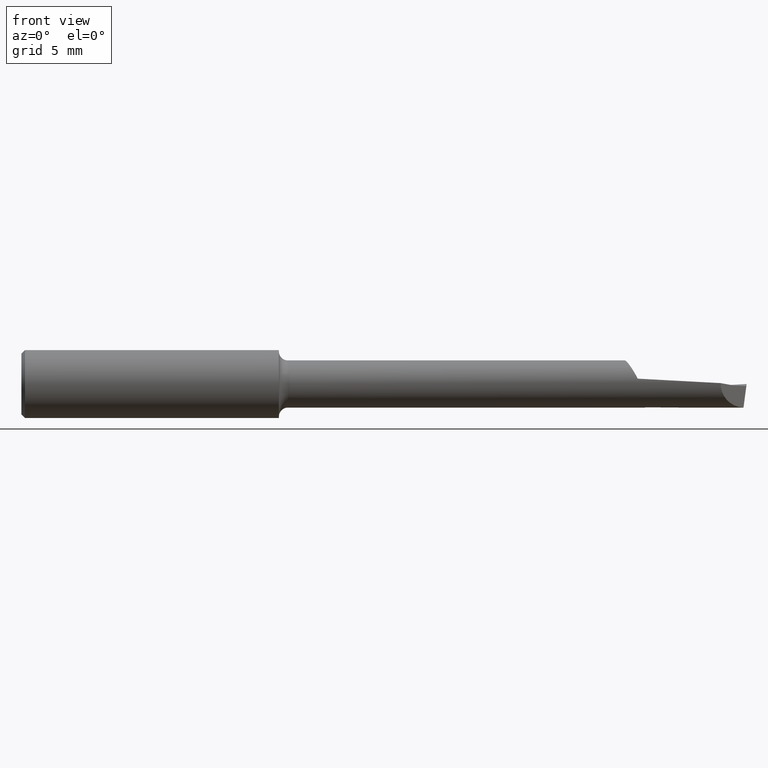
[diagram: clean part render]
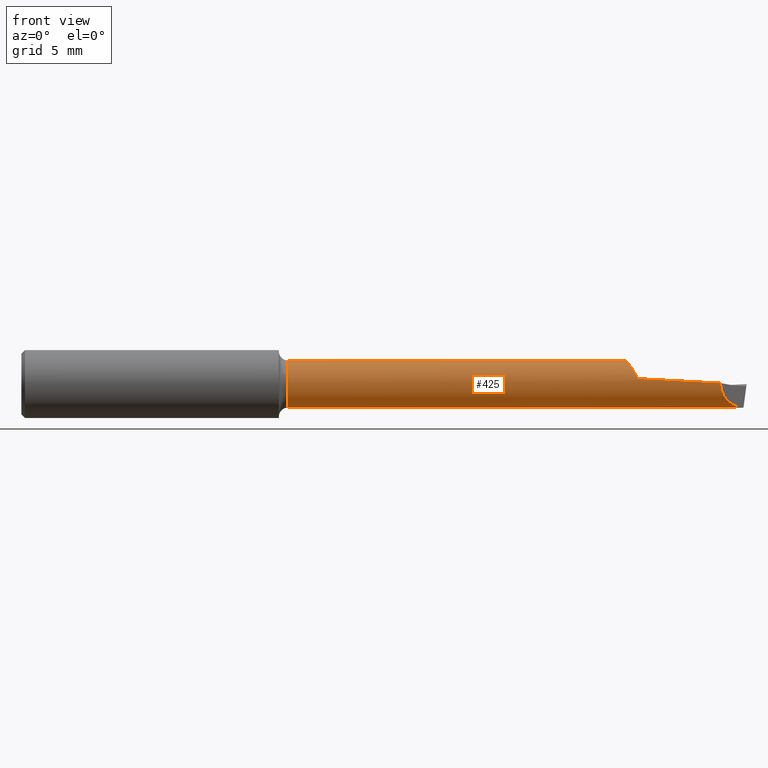
[diagram: same view with one face highlighted and labeled with its STEP entity id]
A machine part, front view. The second image highlights one B-rep face of the part: STEP entity #425.
In plain terms, the highlighted cylindrical surface (edge-blend (fillet) strip) has radius 1.651 mm, axis along (-1, -0, -0).
Its self-contained STEP definition (entity closure, byte-faithful):
#8 = CARTESIAN_POINT ( 'NONE',  ( 1.667261456732745506, -0.01378368978422076473, 0.06362134062580601657 ) ) ;
#18 = AXIS2_PLACEMENT_3D ( 'NONE', #138, #553, #372 ) ;
#24 = CARTESIAN_POINT ( 'NONE',  ( 1.751194580466905792, -0.006177430924799603464, -0.06477662660053580546 ) ) ;
#30 = CARTESIAN_POINT ( 'NONE',  ( 1.813570384251951273, 8.003460918938271148E-19, -0.06500000000000000222 ) ) ;
#38 = CARTESIAN_POINT ( 'NONE',  ( 1.699977625303844553, -0.06329835092067141733, 0.01477561405571807193 ) ) ;
#52 = CARTESIAN_POINT ( 'NONE',  ( 1.677202741120177754, -0.03862555393859516684, 0.05228136643228501607 ) ) ;
#57 = ORIENTED_EDGE ( 'NONE', *, *, #495, .T. ) ;
#69 = CARTESIAN_POINT ( 'NONE',  ( 0.000000000000000000, 0.000000000000000000, 0.06499999999999998834 ) ) ;
#93 = CARTESIAN_POINT ( 'NONE',  ( 1.953242078417094296, -0.04044165432096010621, -0.06358710017899862899 ) ) ;
#118 = CARTESIAN_POINT ( 'NONE',  ( 1.677652338294585821, -0.03944591485999998648, 0.05166569923872247477 ) ) ;
#129 = ORIENTED_EDGE ( 'NONE', *, *, #556, .F. ) ;
#136 = VERTEX_POINT ( 'NONE', #472 ) ;
#138 = CARTESIAN_POINT ( 'NONE',  ( 1.719999999999999973, 0.000000000000000000, 0.000000000000000000 ) ) ;
#143 = VECTOR ( 'NONE', #161, 39.37007874015748143 ) ;
#147 = CARTESIAN_POINT ( 'NONE',  ( 1.664282264028300151, 9.629122535582421507E-07, 0.06500714507469043668 ) ) ;
#148 = CARTESIAN_POINT ( 'NONE',  ( 1.991350124252631471, -0.001558269957249901238, -0.06498599036864870226 ) ) ;
#152 = CARTESIAN_POINT ( 'NONE',  ( 1.991346768599194572, -0.002336964138860349403, -0.06495797563512641093 ) ) ;
#160 = VERTEX_POINT ( 'NONE', #467 ) ;
#161 = DIRECTION ( 'NONE',  ( -1.000000000000000000, -0.000000000000000000, -0.000000000000000000 ) ) ;
#164 = CARTESIAN_POINT ( 'NONE',  ( 0.000000000000000000, 7.960204194457793628E-18, -0.06499999999999998834 ) ) ;
#168 = CARTESIAN_POINT ( 'NONE',  ( 1.670784438365078506, -0.02456679488876298625, 0.06029855173159224396 ) ) ;
#169 = CIRCLE ( 'NONE', #608, 0.06499999999999998834 ) ;
#180 = CARTESIAN_POINT ( 'NONE',  ( 1.665945290486797070, -0.008512530675338348535, 0.06446474302496317532 ) ) ;
#186 = CARTESIAN_POINT ( 'NONE',  ( 1.676749584679821936, -0.03777747030632286340, 0.05289742366453282357 ) ) ;
#191 = CARTESIAN_POINT ( 'NONE',  ( 1.664419148966658435, -0.0008299192885627541295, 0.06499604847790314832 ) ) ;
#197 = ORIENTED_EDGE ( 'NONE', *, *, #484, .F. ) ;
#201 = B_SPLINE_CURVE_WITH_KNOTS ( 'NONE', 3,
 ( #657, #24, #363, #30 ),
 .UNSPECIFIED., .F., .F.,
 ( 4, 4 ),
 ( 0.000000000000000000, 0.002388144790512181353 ),
 .UNSPECIFIED. ) ;
#203 = VERTEX_POINT ( 'NONE', #361 ) ;
#206 = EDGE_CURVE ( 'NONE', #160, #263, #655, .T. ) ;
#211 = DIRECTION ( 'NONE',  ( 0.000000000000000000, 0.000000000000000000, 1.000000000000000000 ) ) ;
#222 = DIRECTION ( 'NONE',  ( -1.000000000000000000, -0.000000000000000000, -0.000000000000000000 ) ) ;
#228 = CARTESIAN_POINT ( 'NONE',  ( 1.694922189286493852, -0.06109974571064823862, 0.02419769389576081203 ) ) ;
#232 = VECTOR ( 'NONE', #385, 39.37007874015748143 ) ;
#235 = CARTESIAN_POINT ( 'NONE',  ( 1.699999999999999956, 0.000000000000000000, -0.06500000000000000222 ) ) ;
#240 = CARTESIAN_POINT ( 'NONE',  ( 1.675630609971750618, -0.03564624879618151498, 0.05440640226064081403 ) ) ;
#243 = CARTESIAN_POINT ( 'NONE',  ( 1.677277705332639535, -0.03876205112631275068, 0.05217839171269312432 ) ) ;
#263 = VERTEX_POINT ( 'NONE', #476 ) ;
#265 = B_SPLINE_CURVE_WITH_KNOTS ( 'NONE', 3,
 ( #359, #228, #647, #474, #753, #541, #118, #243, #52, #186, #240, #595, #706, #168, #465, #8, #180, #422, #521, #694, #402, #191, #728, #147 ),
 .UNSPECIFIED., .F., .F.,
 ( 4, 2, 2, 2, 2, 1, 2, 2, 2, 2, 1, 2, 4 ),
 ( 0.000000000000000000, 0.2298010575319051063, 0.4596021150638102126, 0.4883272472552957488, 0.5026898133510385724, 0.5170523794467812850, 0.5745026438297522464, 0.6894031725956940582, 0.8043037013616360920, 0.8617539657446070533, 0.8904790979360924785, 0.9048416640318344140, 0.9192042301275763494 ),
 .UNSPECIFIED. ) ;
#276 = CARTESIAN_POINT ( 'NONE',  ( 1.991346768599194572, -0.002336964138860349403, -0.06495797563512641093 ) ) ;
#307 = EDGE_LOOP ( 'NONE', ( #197, #390, #641, #523, #129, #439, #57, #445, #727, #335 ) ) ;
#326 = CARTESIAN_POINT ( 'NONE',  ( 0.7350000000000000977, 7.960204194457793628E-18, -0.06499999999999998834 ) ) ;
#328 = CARTESIAN_POINT ( 'NONE',  ( 1.991346768599194572, -0.002336964138860349403, -0.06495797563512641093 ) ) ;
#334 = LINE ( 'NONE', #164, #143 ) ;
#335 = ORIENTED_EDGE ( 'NONE', *, *, #433, .F. ) ;
#359 = CARTESIAN_POINT ( 'NONE',  ( 1.699977625303844553, -0.06329835092067141733, 0.01477561405571807193 ) ) ;
#361 = CARTESIAN_POINT ( 'NONE',  ( 1.928729976218956255, -0.06495375651909796044, 0.002451431022431828106 ) ) ;
#363 = CARTESIAN_POINT ( 'NONE',  ( 1.782384157267214331, -0.003113718387558165809, -0.06500000000000005773 ) ) ;
#367 = LINE ( 'NONE', #69, #232 ) ;
#372 = DIRECTION ( 'NONE',  ( 0.000000000000000000, 0.000000000000000000, -1.000000000000000000 ) ) ;
#380 = EDGE_CURVE ( 'NONE', #670, #583, #552, .T. ) ;
#382 = CARTESIAN_POINT ( 'NONE',  ( 1.991355202879055541, -0.0007791979554441065634, -0.06500000000000000222 ) ) ;
#385 = DIRECTION ( 'NONE',  ( -1.000000000000000000, -0.000000000000000000, -0.000000000000000000 ) ) ;
#390 = ORIENTED_EDGE ( 'NONE', *, *, #380, .T. ) ;
#402 = CARTESIAN_POINT ( 'NONE',  ( 1.664560578207861186, -0.001666625202061085883, 0.06497997725610032971 ) ) ;
#416 =( BOUNDED_CURVE ( )  B_SPLINE_CURVE ( 3, ( #276, #148, #382, #617 ),
 .UNSPECIFIED., .F., .F. ) 
 B_SPLINE_CURVE_WITH_KNOTS ( ( 4, 4 ),
 ( 0.03499157823729449196, 0.07095262296443949346 ),
 .UNSPECIFIED. ) 
 CURVE ( )  GEOMETRIC_REPRESENTATION_ITEM ( )  RATIONAL_B_SPLINE_CURVE ( ( 1.000000000000000000, 0.9998922365085453068, 0.9998922365085453068, 1.000000000000000000 ) ) 
 REPRESENTATION_ITEM ( '' )  );
#422 = CARTESIAN_POINT ( 'NONE',  ( 1.665551100861837330, -0.006773844914008124614, 0.06466892630471646197 ) ) ;
#425 = ADVANCED_FACE ( 'NONE', ( #744 ), #448, .T. ) ;
#433 = EDGE_CURVE ( 'NONE', #570, #574, #169, .T. ) ;
#435 = VERTEX_POINT ( 'NONE', #460 ) ;
#439 = ORIENTED_EDGE ( 'NONE', *, *, #757, .F. ) ;
#445 = ORIENTED_EDGE ( 'NONE', *, *, #656, .T. ) ;
#448 = CYLINDRICAL_SURFACE ( 'NONE', #503, 0.06499999999999998834 ) ;
#460 = CARTESIAN_POINT ( 'NONE',  ( 1.699977625303844553, -0.06329835092067141733, 0.01477561405571807193 ) ) ;
#465 = CARTESIAN_POINT ( 'NONE',  ( 1.668317030724798311, -0.01737246559410435265, 0.06275061905045808963 ) ) ;
#467 = CARTESIAN_POINT ( 'NONE',  ( 1.813570384251951273, 8.003460918938271148E-19, -0.06500000000000000222 ) ) ;
#472 = CARTESIAN_POINT ( 'NONE',  ( 1.664282264028300151, 9.629122535582421507E-07, 0.06500714507469043668 ) ) ;
#474 = CARTESIAN_POINT ( 'NONE',  ( 1.683276055985310160, -0.04866035578935893474, 0.04370380384906218801 ) ) ;
#476 = CARTESIAN_POINT ( 'NONE',  ( 1.991362002836595479, 0.000000000000000000, -0.06500000000000000222 ) ) ;
#484 = EDGE_CURVE ( 'NONE', #670, #570, #334, .T. ) ;
#494 =( BOUNDED_CURVE ( )  B_SPLINE_CURVE ( 3, ( #715, #545, #93, #328 ),
 .UNSPECIFIED., .F., .T. ) 
 B_SPLINE_CURVE_WITH_KNOTS ( ( 4, 4 ),
 ( 6.245462037408546330, 7.818020589247341334 ),
 .UNSPECIFIED. ) 
 CURVE ( )  GEOMETRIC_REPRESENTATION_ITEM ( )  RATIONAL_B_SPLINE_CURVE ( ( 1.000000000000000000, 0.8043223107623128643, 0.8043223107623128643, 1.000000000000000000 ) ) 
 REPRESENTATION_ITEM ( '' )  );
#495 = EDGE_CURVE ( 'NONE', #203, #435, #530, .T. ) ;
#501 = CARTESIAN_POINT ( 'NONE',  ( 1.928729976218956255, -0.06495375651909796044, 0.002451431022431828106 ) ) ;
#503 = AXIS2_PLACEMENT_3D ( 'NONE', #734, #222, #211 ) ;
#510 = DIRECTION ( 'NONE',  ( 0.000000000000000000, 0.000000000000000000, 1.000000000000000000 ) ) ;
#521 = CARTESIAN_POINT ( 'NONE',  ( 1.665026615109928887, -0.004203150978950692326, 0.06486965602598117331 ) ) ;
#523 = ORIENTED_EDGE ( 'NONE', *, *, #206, .T. ) ;
#528 = CARTESIAN_POINT ( 'NONE',  ( 0.7350000000000000977, 0.000000000000000000, 0.06499999999999998834 ) ) ;
#530 =( BOUNDED_CURVE ( )  B_SPLINE_CURVE ( 2, ( #501, #628, #38 ),
 .UNSPECIFIED., .F., .T. ) 
 B_SPLINE_CURVE_WITH_KNOTS ( ( 3, 3 ),
 ( 0.09584287386699438804, 0.4003872126215907157 ),
 .UNSPECIFIED. ) 
 CURVE ( )  GEOMETRIC_REPRESENTATION_ITEM ( )  RATIONAL_B_SPLINE_CURVE ( ( 0.9793538035410735976, 0.9748078979038108383, 0.9792426333894664880 ) ) 
 REPRESENTATION_ITEM ( '' )  );
#534 = VECTOR ( 'NONE', #546, 39.37007874015748143 ) ;
#541 = CARTESIAN_POINT ( 'NONE',  ( 1.677913488775755635, -0.03991240611712192771, 0.05130661605853210905 ) ) ;
#545 = CARTESIAN_POINT ( 'NONE',  ( 1.927291953886837383, -0.06639177885121692879, -0.03565078420401357473 ) ) ;
#546 = DIRECTION ( 'NONE',  ( 1.000000000000000000, -0.000000000000000000, -0.000000000000000000 ) ) ;
#552 = CIRCLE ( 'NONE', #18, 0.06499999999999998834 ) ;
#553 = DIRECTION ( 'NONE',  ( -1.000000000000000000, -0.000000000000000000, -0.000000000000000000 ) ) ;
#556 = EDGE_CURVE ( 'NONE', #742, #263, #416, .T. ) ;
#570 = VERTEX_POINT ( 'NONE', #326 ) ;
#574 = VERTEX_POINT ( 'NONE', #528 ) ;
#583 = VERTEX_POINT ( 'NONE', #703 ) ;
#595 = CARTESIAN_POINT ( 'NONE',  ( 1.674581217227777197, -0.03346525592484413114, 0.05575985047724303645 ) ) ;
#608 = AXIS2_PLACEMENT_3D ( 'NONE', #686, #674, #510 ) ;
#617 = CARTESIAN_POINT ( 'NONE',  ( 1.991362002836595479, 0.000000000000000000, -0.06500000000000000222 ) ) ;
#628 = CARTESIAN_POINT ( 'NONE',  ( 1.814366814679382323, -0.06471819013958940436, 0.008693059327969099304 ) ) ;
#641 = ORIENTED_EDGE ( 'NONE', *, *, #725, .T. ) ;
#647 = CARTESIAN_POINT ( 'NONE',  ( 1.690553950795988802, -0.05711336387820068611, 0.03187344291005511643 ) ) ;
#655 = LINE ( 'NONE', #235, #534 ) ;
#656 = EDGE_CURVE ( 'NONE', #435, #136, #265, .T. ) ;
#657 = CARTESIAN_POINT ( 'NONE',  ( 1.719999999999999973, -0.009175636126352458913, -0.06434910800995440050 ) ) ;
#670 = VERTEX_POINT ( 'NONE', #737 ) ;
#674 = DIRECTION ( 'NONE',  ( -1.000000000000000000, -0.000000000000000000, -0.000000000000000000 ) ) ;
#686 = CARTESIAN_POINT ( 'NONE',  ( 0.7350000000000000977, 0.000000000000000000, 0.000000000000000000 ) ) ;
#694 = CARTESIAN_POINT ( 'NONE',  ( 1.664781071905357290, -0.002927110651644848020, 0.06494364304292450651 ) ) ;
#703 = CARTESIAN_POINT ( 'NONE',  ( 1.719999999999999973, -0.009175636126352458913, -0.06434910800995440050 ) ) ;
#706 = CARTESIAN_POINT ( 'NONE',  ( 1.672196272013305007, -0.02817231628748777250, 0.05871675836111039243 ) ) ;
#715 = CARTESIAN_POINT ( 'NONE',  ( 1.928729976218956255, -0.06495375651909796044, 0.002451431022431828106 ) ) ;
#725 = EDGE_CURVE ( 'NONE', #583, #160, #201, .T. ) ;
#727 = ORIENTED_EDGE ( 'NONE', *, *, #746, .T. ) ;
#728 = CARTESIAN_POINT ( 'NONE',  ( 1.664364337203153354, -0.0004968845479991039482, 0.06500001177846240208 ) ) ;
#734 = CARTESIAN_POINT ( 'NONE',  ( 0.000000000000000000, 0.000000000000000000, 0.000000000000000000 ) ) ;
#737 = CARTESIAN_POINT ( 'NONE',  ( 1.719999999999999973, 7.960204194457793628E-18, -0.06499999999999998834 ) ) ;
#742 = VERTEX_POINT ( 'NONE', #152 ) ;
#744 = FACE_OUTER_BOUND ( 'NONE', #307, .T. ) ;
#746 = EDGE_CURVE ( 'NONE', #136, #574, #367, .T. ) ;
#753 = CARTESIAN_POINT ( 'NONE',  ( 1.680366399665138122, -0.04419608367276998268, 0.04790952982313780029 ) ) ;
#757 = EDGE_CURVE ( 'NONE', #203, #742, #494, .T. ) ;